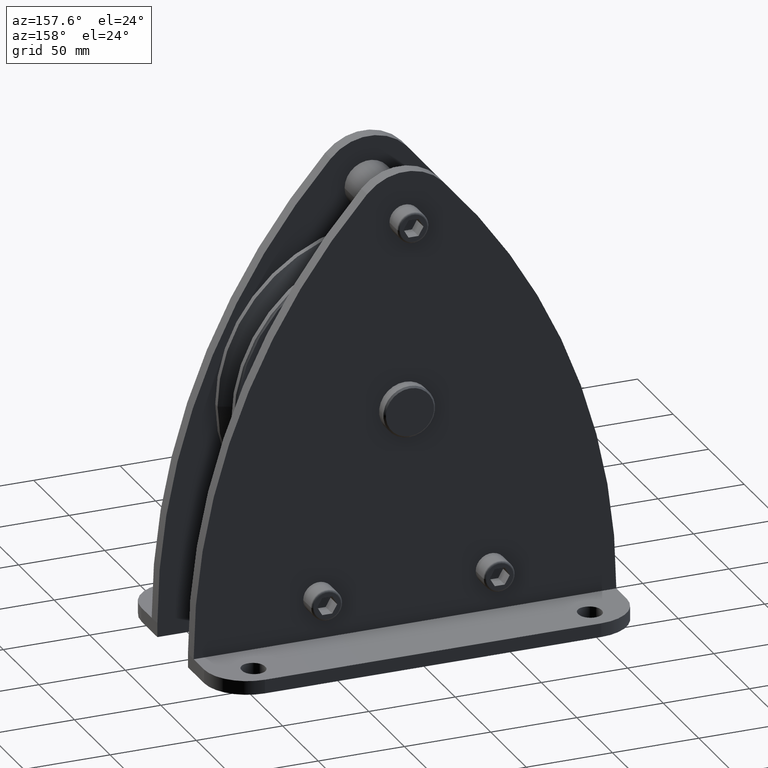
[diagram: clean part render]
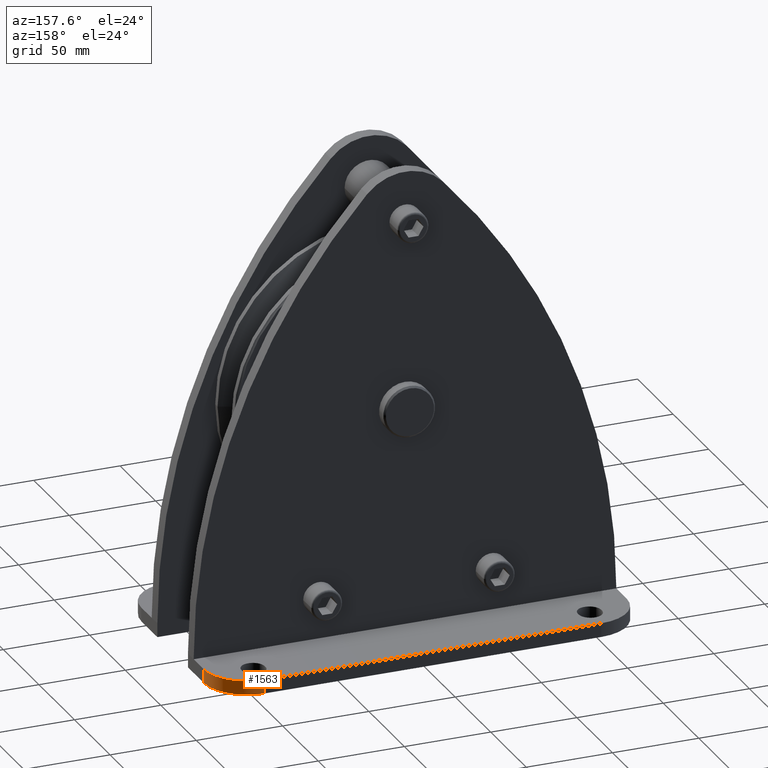
[diagram: same view with one face highlighted and labeled with its STEP entity id]
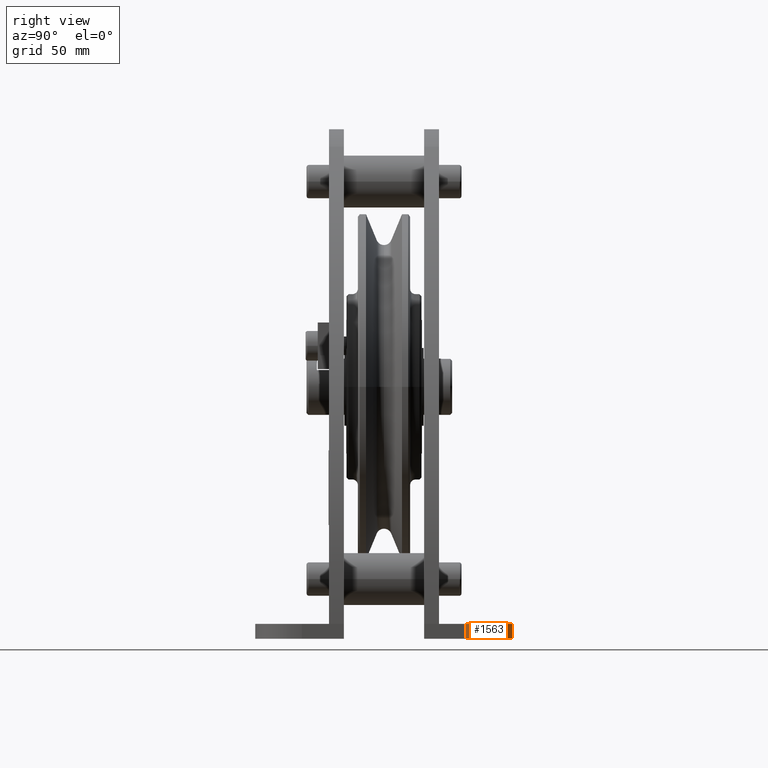
[diagram: same view with one face highlighted and labeled with its STEP entity id]
A machine part, auxiliary view. The second image highlights one B-rep face of the part: STEP entity #1563.
A second angle (right view) of the same face is appended — the face is thin or edge-on in the first view.
In plain terms, the highlighted cylindrical surface (partial cylindrical patch) has radius 25 mm, axis along (0, 0, 1).
Its self-contained STEP definition (entity closure, byte-faithful):
#1563=ADVANCED_FACE('',(#3389),#3390,.T.);
#3389=FACE_OUTER_BOUND('',#5475,.T.);
#3390=CYLINDRICAL_SURFACE('',#5476,24.9999999988999);
#5475=EDGE_LOOP('',(#10403,#10404,#10405,#10406));
#5476=AXIS2_PLACEMENT_3D('',#10407,#10408,#10409);
#10403=ORIENTED_EDGE('',*,*,#14197,.T.);
#10404=ORIENTED_EDGE('',*,*,#14180,.F.);
#10405=ORIENTED_EDGE('',*,*,#14165,.T.);
#10406=ORIENTED_EDGE('',*,*,#14201,.T.);
#10407=CARTESIAN_POINT('',(97.5000000011001,44.0000000011001,-135.0));
#10408=DIRECTION('',(0.0,0.0,1.0));
#10409=DIRECTION('',(1.0,-4.53815118837116E-011,0.0));
#14165=EDGE_CURVE('',#17569,#17567,#17570,.T.);
#14180=EDGE_CURVE('',#17569,#17589,#17590,.T.);
#14197=EDGE_CURVE('',#17616,#17589,#17617,.T.);
#14201=EDGE_CURVE('',#17567,#17616,#17622,.T.);
#17567=VERTEX_POINT('',#24890);
#17569=VERTEX_POINT('',#24893);
#17570=CIRCLE('',#24894,24.9999999988999);
#17589=VERTEX_POINT('',#24919);
#17590=LINE('',#24920,#24921);
#17616=VERTEX_POINT('',#24954);
#17617=CIRCLE('',#24955,24.9999999988999);
#17622=LINE('',#24961,#24962);
#24890=CARTESIAN_POINT('',(97.5,69.0,-135.0));
#24893=CARTESIAN_POINT('',(122.5,43.9999999999655,-135.0));
#24894=AXIS2_PLACEMENT_3D('',#29084,#29085,#29086);
#24919=CARTESIAN_POINT('',(122.5,43.9999999999655,-127.0));
#24920=CARTESIAN_POINT('',(122.5,43.9999999999655,-135.0));
#24921=VECTOR('',#29102,1.0);
#24954=CARTESIAN_POINT('',(97.5,69.0,-127.0));
#24955=AXIS2_PLACEMENT_3D('',#29131,#29132,#29133);
#24961=CARTESIAN_POINT('',(97.5,69.0,-135.0));
#24962=VECTOR('',#29138,1.0);
#29084=CARTESIAN_POINT('',(97.5000000011001,44.0000000011001,-135.0));
#29085=DIRECTION('',(0.0,0.0,1.0));
#29086=DIRECTION('',(1.0,-4.53815118837116E-011,0.0));
#29102=DIRECTION('',(0.0,0.0,1.0));
#29131=CARTESIAN_POINT('',(97.5000000011001,44.0000000011001,-127.0));
#29132=DIRECTION('',(0.0,0.0,-1.0));
#29133=DIRECTION('',(1.0,-4.53815118837116E-011,0.0));
#29138=DIRECTION('',(0.0,0.0,1.0));